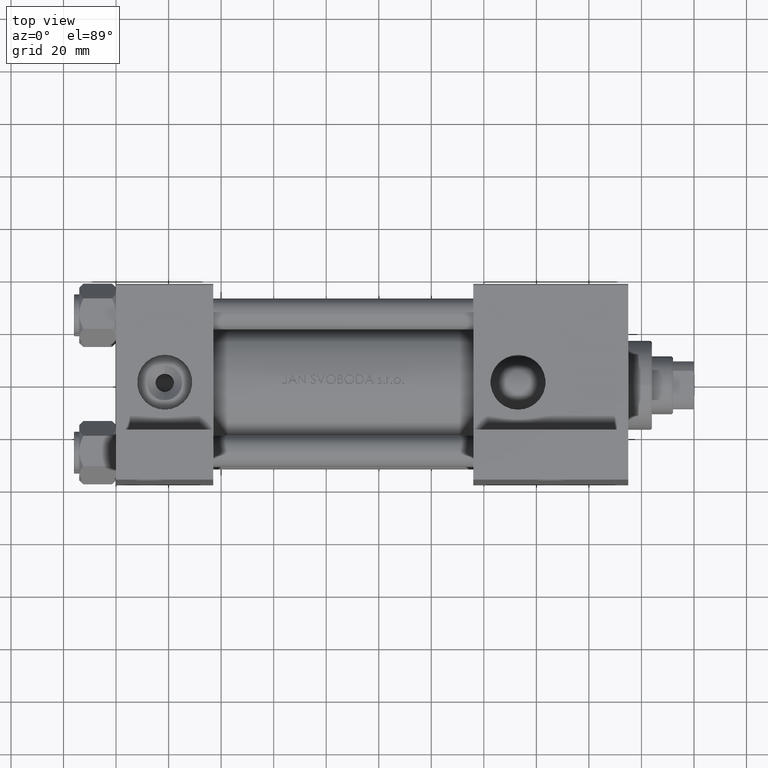
[diagram: clean part render]
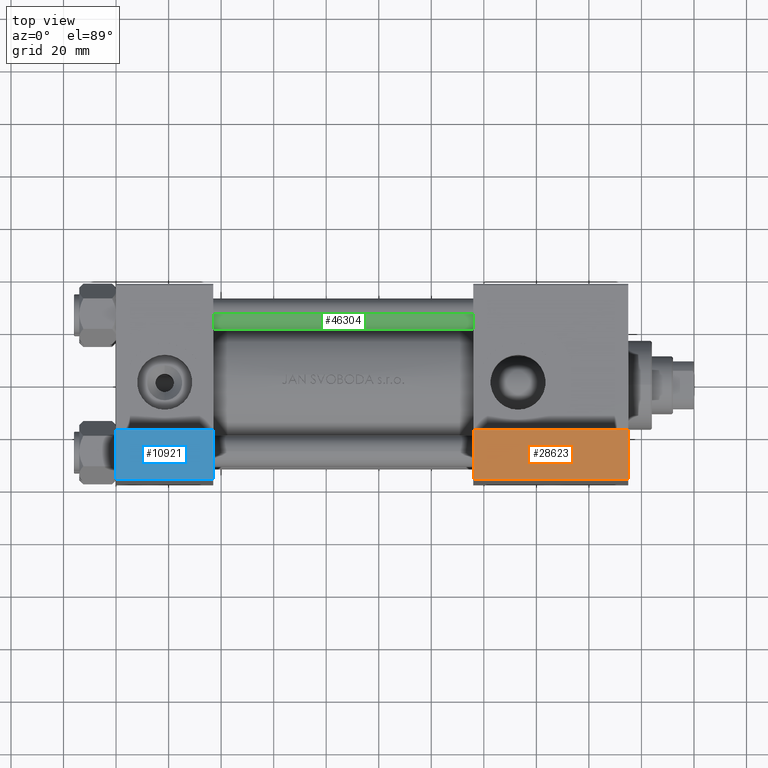
[diagram: same view with three faces highlighted in distinct colors, each labeled with its STEP entity id]
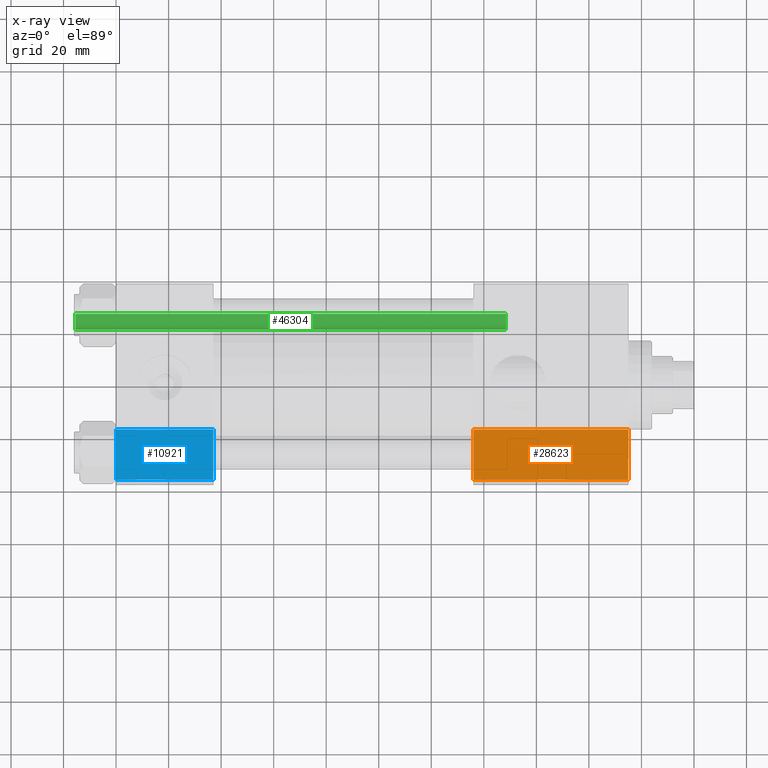
[diagram: x-ray of the same camera — body ghosted, the three highlighted faces saturated]
A machine part, top view with three faces highlighted in distinct colors.
The next image is the same camera in x-ray (body ghosted, the three faces saturated) — at least one of them is partly hidden behind the body in this view.
Their STEP definitions:

[orange] entity #28623 — the highlighted planar face has unit normal (-0, 0, 1).
#83 = FACE_OUTER_BOUND ( 'NONE', #9969, .T. ) ;
#2127 = CARTESIAN_POINT ( 'NONE',  ( 136.0000000000000000, -63.50000000000000000, -18.50000000000000000 ) ) ;
#4849 = VERTEX_POINT ( 'NONE', #23317 ) ;
#7517 = AXIS2_PLACEMENT_3D ( 'NONE', #12280, #15275, #22982 ) ;
#8159 = EDGE_CURVE ( 'NONE', #42745, #10505, #11323, .T. ) ;
#9429 = CARTESIAN_POINT ( 'NONE',  ( 195.0000000000000000, -63.50000000000002842, -18.50000000000000000 ) ) ;
#9969 = EDGE_LOOP ( 'NONE', ( #39199, #27252, #28172, #47669 ) ) ;
#10505 = VERTEX_POINT ( 'NONE', #34442 ) ;
#11323 = LINE ( 'NONE', #11813, #38098 ) ;
#11424 = DIRECTION ( 'NONE',  ( -1.000000000000000000, 4.704334850106595794E-16, -0.000000000000000000 ) ) ;
#11813 = CARTESIAN_POINT ( 'NONE',  ( 136.0000000000000000, -63.50000000000000000, -37.50000000000000000 ) ) ;
#12280 = CARTESIAN_POINT ( 'NONE',  ( 136.0000000000000000, -63.50000000000000000, -18.50000000000000000 ) ) ;
#13088 = DIRECTION ( 'NONE',  ( 0.000000000000000000, 0.000000000000000000, -1.000000000000000000 ) ) ;
#13730 = EDGE_CURVE ( 'NONE', #17586, #42745, #43051, .T. ) ;
#15275 = DIRECTION ( 'NONE',  ( -4.704334850106595794E-16, -1.000000000000000000, 0.000000000000000000 ) ) ;
#17586 = VERTEX_POINT ( 'NONE', #17838 ) ;
#17838 = CARTESIAN_POINT ( 'NONE',  ( 195.0000000000000000, -63.50000000000002842, -18.50000000000000000 ) ) ;
#19267 = CARTESIAN_POINT ( 'NONE',  ( 195.0000000000000000, -63.50000000000002842, -37.50000000000000000 ) ) ;
#21029 = LINE ( 'NONE', #2127, #43235 ) ;
#22126 = LINE ( 'NONE', #33823, #24443 ) ;
#22982 = DIRECTION ( 'NONE',  ( 1.000000000000000000, -4.704334850106595794E-16, 0.000000000000000000 ) ) ;
#23317 = CARTESIAN_POINT ( 'NONE',  ( 136.0000000000000000, -63.50000000000000000, -18.50000000000000000 ) ) ;
#24443 = VECTOR ( 'NONE', #11424, 1000.000000000000000 ) ;
#26625 = EDGE_CURVE ( 'NONE', #4849, #10505, #21029, .T. ) ;
#27252 = ORIENTED_EDGE ( 'NONE', *, *, #13730, .F. ) ;
#28172 = ORIENTED_EDGE ( 'NONE', *, *, #35732, .T. ) ;
#28623 = ADVANCED_FACE ( 'NONE', ( #83 ), #46148, .T. ) ;
#31604 = DIRECTION ( 'NONE',  ( 0.000000000000000000, 0.000000000000000000, -1.000000000000000000 ) ) ;
#33823 = CARTESIAN_POINT ( 'NONE',  ( 136.0000000000000000, -63.50000000000000000, -18.50000000000000000 ) ) ;
#34442 = CARTESIAN_POINT ( 'NONE',  ( 136.0000000000000000, -63.50000000000000000, -37.50000000000000000 ) ) ;
#35732 = EDGE_CURVE ( 'NONE', #17586, #4849, #22126, .T. ) ;
#38098 = VECTOR ( 'NONE', #41934, 1000.000000000000000 ) ;
#39199 = ORIENTED_EDGE ( 'NONE', *, *, #8159, .F. ) ;
#41934 = DIRECTION ( 'NONE',  ( -1.000000000000000000, 4.704334850106595794E-16, -0.000000000000000000 ) ) ;
#42745 = VERTEX_POINT ( 'NONE', #19267 ) ;
#43051 = LINE ( 'NONE', #9429, #45313 ) ;
#43235 = VECTOR ( 'NONE', #13088, 1000.000000000000000 ) ;
#45313 = VECTOR ( 'NONE', #31604, 1000.000000000000000 ) ;
#46148 = PLANE ( 'NONE',  #7517 ) ;
#47669 = ORIENTED_EDGE ( 'NONE', *, *, #26625, .T. ) ;

[blue] entity #10921 — the highlighted planar face has unit normal (0, 0, 1).
#31 = VECTOR ( 'NONE', #24620, 1000.000000000000000 ) ;
#1184 = LINE ( 'NONE', #8662, #30453 ) ;
#1842 = CARTESIAN_POINT ( 'NONE',  ( 3.977209754999747208E-16, -63.50000000000000000, -18.50000000000000355 ) ) ;
#4054 = VERTEX_POINT ( 'NONE', #29701 ) ;
#4723 = CARTESIAN_POINT ( 'NONE',  ( 37.00000000000000000, -63.49999999999998579, 26.72167621838007889 ) ) ;
#6458 = EDGE_CURVE ( 'NONE', #33133, #4054, #42112, .T. ) ;
#8662 = CARTESIAN_POINT ( 'NONE',  ( 3.977209754999747208E-16, -63.49999999999998579, 26.72167621838007889 ) ) ;
#9309 = LINE ( 'NONE', #1842, #43844 ) ;
#9463 = FACE_OUTER_BOUND ( 'NONE', #30735, .T. ) ;
#10205 = PLANE ( 'NONE',  #32503 ) ;
#10921 = ADVANCED_FACE ( 'NONE', ( #9463 ), #10205, .T. ) ;
#16696 = CARTESIAN_POINT ( 'NONE',  ( 37.00000000000000000, -63.50000000000000000, -18.50000000000000355 ) ) ;
#17020 = EDGE_CURVE ( 'NONE', #40959, #37951, #9309, .T. ) ;
#17197 = ORIENTED_EDGE ( 'NONE', *, *, #45849, .F. ) ;
#17232 = CARTESIAN_POINT ( 'NONE',  ( 37.00000000000000000, -63.50000000000000000, -37.49999999999999289 ) ) ;
#19373 = DIRECTION ( 'NONE',  ( 0.000000000000000000, -1.734723475976806848E-16, -1.000000000000000000 ) ) ;
#19930 = CARTESIAN_POINT ( 'NONE',  ( 3.977209754999747208E-16, -63.50000000000000000, -37.49999999999999289 ) ) ;
#20675 = EDGE_CURVE ( 'NONE', #40959, #4054, #1184, .T. ) ;
#21137 = CARTESIAN_POINT ( 'NONE',  ( 3.977209754999747208E-16, -63.49999999999998579, 26.72167621838007889 ) ) ;
#24620 = DIRECTION ( 'NONE',  ( 0.000000000000000000, -1.734723475976806848E-16, -1.000000000000000000 ) ) ;
#24643 = DIRECTION ( 'NONE',  ( 0.000000000000000000, -1.734723475976806848E-16, -1.000000000000000000 ) ) ;
#26925 = VECTOR ( 'NONE', #27645, 1000.000000000000000 ) ;
#27199 = ORIENTED_EDGE ( 'NONE', *, *, #6458, .F. ) ;
#27645 = DIRECTION ( 'NONE',  ( -1.000000000000000000, -0.000000000000000000, -0.000000000000000000 ) ) ;
#29701 = CARTESIAN_POINT ( 'NONE',  ( 3.977209754999747208E-16, -63.50000000000000000, -37.49999999999999289 ) ) ;
#30453 = VECTOR ( 'NONE', #19373, 1000.000000000000000 ) ;
#30735 = EDGE_LOOP ( 'NONE', ( #43692, #45044, #27199, #17197 ) ) ;
#32362 = DIRECTION ( 'NONE',  ( 0.000000000000000000, -1.000000000000000000, 1.734723475976806848E-16 ) ) ;
#32503 = AXIS2_PLACEMENT_3D ( 'NONE', #21137, #32362, #24643 ) ;
#33133 = VERTEX_POINT ( 'NONE', #17232 ) ;
#36679 = DIRECTION ( 'NONE',  ( 1.000000000000000000, 0.000000000000000000, 0.000000000000000000 ) ) ;
#37951 = VERTEX_POINT ( 'NONE', #16696 ) ;
#40959 = VERTEX_POINT ( 'NONE', #45968 ) ;
#42112 = LINE ( 'NONE', #19930, #26925 ) ;
#43692 = ORIENTED_EDGE ( 'NONE', *, *, #17020, .F. ) ;
#43844 = VECTOR ( 'NONE', #36679, 1000.000000000000000 ) ;
#45044 = ORIENTED_EDGE ( 'NONE', *, *, #20675, .T. ) ;
#45849 = EDGE_CURVE ( 'NONE', #37951, #33133, #46555, .T. ) ;
#45968 = CARTESIAN_POINT ( 'NONE',  ( 3.977209754999747208E-16, -63.50000000000000000, -18.50000000000000355 ) ) ;
#46555 = LINE ( 'NONE', #4723, #31 ) ;

[green] entity #46304 — the highlighted cylindrical surface (edge-blend (fillet) strip) has radius 6 mm, axis along (-1, -0, -0).
#477 = VERTEX_POINT ( 'NONE', #18823 ) ;
#1910 = DIRECTION ( 'NONE',  ( -1.000000000000000000, 0.000000000000000000, 0.000000000000000000 ) ) ;
#2149 = FACE_OUTER_BOUND ( 'NONE', #46816, .T. ) ;
#3034 = VERTEX_POINT ( 'NONE', #21220 ) ;
#3365 = EDGE_CURVE ( 'NONE', #30863, #3034, #49085, .T. ) ;
#3513 = CARTESIAN_POINT ( 'NONE',  ( 6.000000000000000888, 7.347880794884120722E-16, 165.0000000000000000 ) ) ;
#4144 = VECTOR ( 'NONE', #46382, 1000.000000000000000 ) ;
#4647 = ORIENTED_EDGE ( 'NONE', *, *, #18875, .T. ) ;
#5258 = CARTESIAN_POINT ( 'NONE',  ( 6.000000000000000888, 7.347880794884120722E-16, 164.5000000000000000 ) ) ;
#5279 = DIRECTION ( 'NONE',  ( 1.000000000000000000, 0.000000000000000000, 0.000000000000000000 ) ) ;
#6381 = CARTESIAN_POINT ( 'NONE',  ( 0.000000000000000000, 0.000000000000000000, 165.0000000000000000 ) ) ;
#7008 = LINE ( 'NONE', #3513, #37819 ) ;
#8775 = LINE ( 'NONE', #42632, #4144 ) ;
#11360 = CARTESIAN_POINT ( 'NONE',  ( 0.000000000000000000, 0.000000000000000000, 0.5000000000000281997 ) ) ;
#12515 = DIRECTION ( 'NONE',  ( -0.000000000000000000, -0.000000000000000000, 1.000000000000000000 ) ) ;
#14112 = AXIS2_PLACEMENT_3D ( 'NONE', #37092, #16942, #40336 ) ;
#16942 = DIRECTION ( 'NONE',  ( 0.000000000000000000, 0.000000000000000000, -1.000000000000000000 ) ) ;
#18218 = EDGE_CURVE ( 'NONE', #3034, #20870, #8775, .T. ) ;
#18823 = CARTESIAN_POINT ( 'NONE',  ( 6.000000000000000888, 7.347880794884120722E-16, 0.5000000000000281997 ) ) ;
#18875 = EDGE_CURVE ( 'NONE', #20870, #477, #24822, .T. ) ;
#19889 = AXIS2_PLACEMENT_3D ( 'NONE', #6381, #36989, #1910 ) ;
#20540 = ORIENTED_EDGE ( 'NONE', *, *, #3365, .T. ) ;
#20870 = VERTEX_POINT ( 'NONE', #33524 ) ;
#21220 = CARTESIAN_POINT ( 'NONE',  ( -6.000000000000000888, 0.000000000000000000, 164.5000000000000000 ) ) ;
#22913 = DIRECTION ( 'NONE',  ( -0.000000000000000000, -0.000000000000000000, -1.000000000000000000 ) ) ;
#24822 = CIRCLE ( 'NONE', #25613, 6.000000000000000888 ) ;
#25613 = AXIS2_PLACEMENT_3D ( 'NONE', #11360, #12515, #5279 ) ;
#29532 = CYLINDRICAL_SURFACE ( 'NONE', #19889, 6.000000000000000888 ) ;
#30863 = VERTEX_POINT ( 'NONE', #5258 ) ;
#31789 = EDGE_CURVE ( 'NONE', #30863, #477, #7008, .T. ) ;
#33524 = CARTESIAN_POINT ( 'NONE',  ( -6.000000000000000888, 0.000000000000000000, 0.5000000000000281997 ) ) ;
#36989 = DIRECTION ( 'NONE',  ( -0.000000000000000000, -0.000000000000000000, -1.000000000000000000 ) ) ;
#37092 = CARTESIAN_POINT ( 'NONE',  ( 0.000000000000000000, 0.000000000000000000, 164.5000000000000000 ) ) ;
#37210 = ORIENTED_EDGE ( 'NONE', *, *, #31789, .F. ) ;
#37819 = VECTOR ( 'NONE', #22913, 1000.000000000000000 ) ;
#40336 = DIRECTION ( 'NONE',  ( 1.000000000000000000, 0.000000000000000000, 0.000000000000000000 ) ) ;
#42632 = CARTESIAN_POINT ( 'NONE',  ( -6.000000000000000888, 0.000000000000000000, 165.0000000000000000 ) ) ;
#46304 = ADVANCED_FACE ( 'NONE', ( #2149 ), #29532, .T. ) ;
#46382 = DIRECTION ( 'NONE',  ( -0.000000000000000000, -0.000000000000000000, -1.000000000000000000 ) ) ;
#46816 = EDGE_LOOP ( 'NONE', ( #37210, #20540, #47448, #4647 ) ) ;
#47448 = ORIENTED_EDGE ( 'NONE', *, *, #18218, .T. ) ;
#49085 = CIRCLE ( 'NONE', #14112, 6.000000000000000888 ) ;